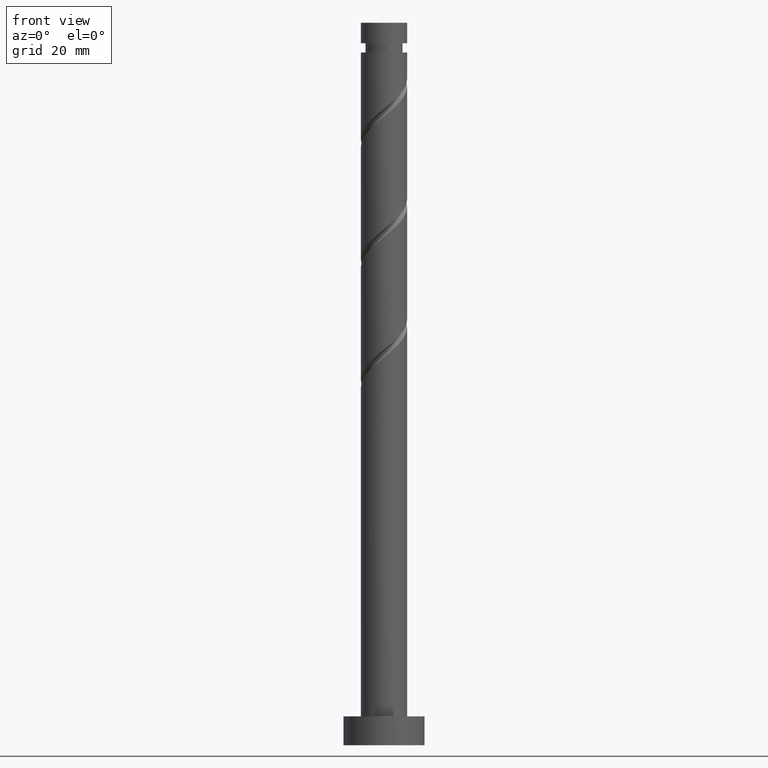
[diagram: clean part render]
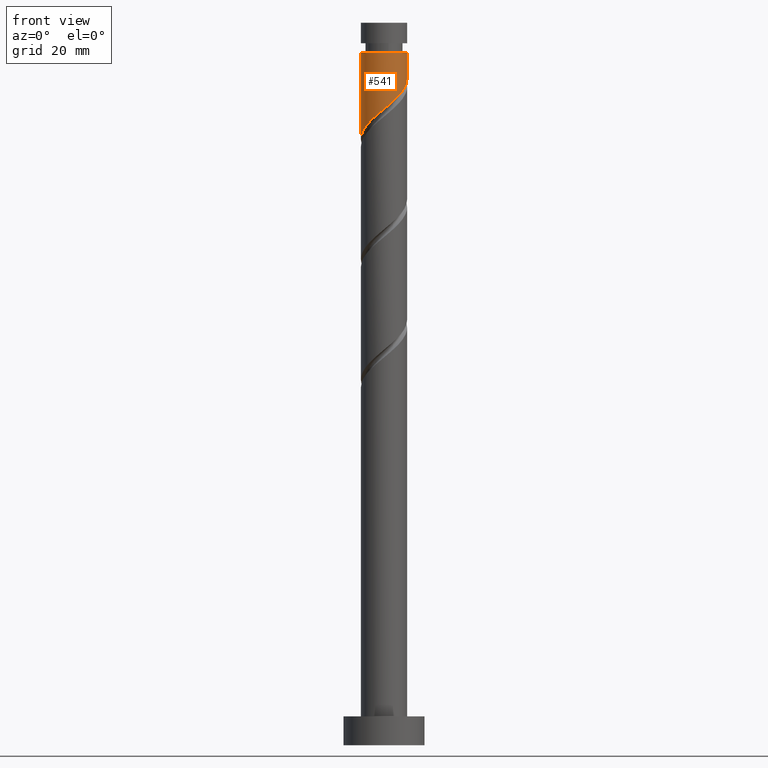
[diagram: same view with one face highlighted and labeled with its STEP entity id]
A machine part, front view. The second image highlights one B-rep face of the part: STEP entity #541.
In plain terms, the highlighted cylindrical surface (edge-blend (fillet) strip) has radius 4 mm, axis along (-0, -0, -1).
Its self-contained STEP definition (entity closure, byte-faithful):
#12 = VECTOR ( 'NONE', #462, 1000.000000000000000 ) ;
#40 = CARTESIAN_POINT ( 'NONE',  ( 3.170406666830035025, -2.519899137249414167, 113.0760576301162388 ) ) ;
#85 = DIRECTION ( 'NONE',  ( -0.000000000000000000, -0.000000000000000000, -1.000000000000000000 ) ) ;
#95 = CYLINDRICAL_SURFACE ( 'NONE', #998, 4.000000000000000000 ) ;
#101 = CARTESIAN_POINT ( 'NONE',  ( 4.000000000000001776, 3.178537790039628998E-15, 115.3033600715865106 ) ) ;
#123 = CARTESIAN_POINT ( 'NONE',  ( 3.482167122072586274, -1.968378046503446388, 113.5968909634495532 ) ) ;
#168 = CIRCLE ( 'NONE', #1420, 3.999999999999996447 ) ;
#180 = VERTEX_POINT ( 'NONE', #354 ) ;
#198 = CARTESIAN_POINT ( 'NONE',  ( -4.000000000000001776, -0.2278949497857279960, 105.0762044941271256 ) ) ;
#226 = EDGE_CURVE ( 'NONE', #419, #900, #439, .T. ) ;
#235 = DIRECTION ( 'NONE',  ( -0.000000000000000000, -0.000000000000000000, -1.000000000000000000 ) ) ;
#308 = CARTESIAN_POINT ( 'NONE',  ( -2.519899137249414167, -3.170406666830035025, 107.8677242967829102 ) ) ;
#354 = CARTESIAN_POINT ( 'NONE',  ( -3.999999999999996447, 0.000000000000000000, 119.8468909634495532 ) ) ;
#363 = CARTESIAN_POINT ( 'NONE',  ( -1.416856955757477943, -3.793927577315138855, 108.9093909634495674 ) ) ;
#399 = CARTESIAN_POINT ( 'NONE',  ( 4.000000000000001776, 3.178537790039629392E-15, 115.3033600715865106 ) ) ;
#419 = VERTEX_POINT ( 'NONE', #101 ) ;
#439 =( BOUNDED_CURVE ( )  B_SPLINE_CURVE ( 2, ( #399, #1237, #1117, #1198, #123, #40, #1061, #1554, #1080, #944, #1427, #1307, #1570, #363, #673, #308, #1016, #1520, #1507, #1147, #1500, #198, #920 ),
 .UNSPECIFIED., .F., .T. ) 
 B_SPLINE_CURVE_WITH_KNOTS ( ( 3, 2, 2, 2, 2, 2, 2, 2, 2, 2, 2, 3 ),
 ( 0.3045322023138551937, 0.3125000000000000000, 0.3250000000000000111, 0.3375000000000000222, 0.3499999999999999778, 0.3624999999999999889, 0.3750000000000000000, 0.3875000000000000111, 0.4000000000000000222, 0.4124999999999999778, 0.4249999999999999889, 0.4295322023138552492 ),
 .UNSPECIFIED. ) 
 CURVE ( )  GEOMETRIC_REPRESENTATION_ITEM ( )  RATIONAL_B_SPLINE_CURVE ( ( 0.9039174447099355136, 0.9019565955404649227, 0.9090909090909131685, 0.8978984914501292325, 0.9090909090909131685, 0.8978984914501292325, 0.9090909090909131685, 0.8978984914501292325, 0.9090909090909131685, 0.8978984914501292325, 0.9090909090909131685, 0.8978984914501292325, 0.9090909090909131685, 0.8978984914501292325, 0.9090909090909131685, 0.8978984914501292325, 0.9090909090909131685, 0.8978984914501292325, 0.9090909090909131685, 0.8978984914501292325, 0.9090909090909131685, 0.9050328050005774783, 0.9039174447099354026 ) ) 
 REPRESENTATION_ITEM ( '' )  );
#445 = LINE ( 'NONE', #716, #468 ) ;
#457 = CARTESIAN_POINT ( 'NONE',  ( 0.000000000000000000, 0.000000000000000000, 119.8468909634495532 ) ) ;
#462 = DIRECTION ( 'NONE',  ( -0.000000000000000000, -0.000000000000000000, -1.000000000000000000 ) ) ;
#468 = VECTOR ( 'NONE', #1183, 1000.000000000000000 ) ;
#541 = ADVANCED_FACE ( 'NONE', ( #1058 ), #95, .T. ) ;
#559 = EDGE_LOOP ( 'NONE', ( #1409, #835, #906, #1001 ) ) ;
#570 = DIRECTION ( 'NONE',  ( -1.000000000000000000, 0.000000000000000000, 0.000000000000000000 ) ) ;
#673 = CARTESIAN_POINT ( 'NONE',  ( -1.968378046503446388, -3.482167122072586718, 108.3885576301162388 ) ) ;
#716 = CARTESIAN_POINT ( 'NONE',  ( 4.000000000000000000, 4.898587196589412829E-16, 125.0000000000000000 ) ) ;
#748 = EDGE_CURVE ( 'NONE', #1302, #180, #168, .T. ) ;
#835 = ORIENTED_EDGE ( 'NONE', *, *, #748, .T. ) ;
#900 = VERTEX_POINT ( 'NONE', #1332 ) ;
#906 = ORIENTED_EDGE ( 'NONE', *, *, #1334, .T. ) ;
#920 = CARTESIAN_POINT ( 'NONE',  ( -4.000000000000000888, 1.919117156250341806E-15, 104.8866934049197965 ) ) ;
#944 = CARTESIAN_POINT ( 'NONE',  ( 1.083753322405397457, -3.902159508677975452, 110.9927242967828960 ) ) ;
#998 = AXIS2_PLACEMENT_3D ( 'NONE', #1551, #235, #1431 ) ;
#1001 = ORIENTED_EDGE ( 'NONE', *, *, #226, .F. ) ;
#1016 = CARTESIAN_POINT ( 'NONE',  ( -2.948087585633557772, -2.703475464551750029, 107.3468909634495532 ) ) ;
#1058 = FACE_OUTER_BOUND ( 'NONE', #559, .T. ) ;
#1061 = CARTESIAN_POINT ( 'NONE',  ( 2.703475464551750029, -2.948087585633557772, 112.5552242967828676 ) ) ;
#1080 = CARTESIAN_POINT ( 'NONE',  ( 1.660148792339431356, -3.639217771347837971, 111.5135576301162246 ) ) ;
#1117 = CARTESIAN_POINT ( 'NONE',  ( 3.920000000000000817, -0.7959899496852961276, 114.6385576301162246 ) ) ;
#1147 = CARTESIAN_POINT ( 'NONE',  ( -3.902159508677975452, -1.083753322405397901, 105.7843909634495674 ) ) ;
#1183 = DIRECTION ( 'NONE',  ( -0.000000000000000000, -0.000000000000000000, -1.000000000000000000 ) ) ;
#1198 = CARTESIAN_POINT ( 'NONE',  ( 3.793927577315138855, -1.416856955757478387, 114.1177242967828818 ) ) ;
#1237 = CARTESIAN_POINT ( 'NONE',  ( 4.000000000000000888, -0.4020151261036860602, 114.9690554961786546 ) ) ;
#1278 = CARTESIAN_POINT ( 'NONE',  ( 3.999999999999996447, 4.898587196589410857E-16, 119.8468909634495532 ) ) ;
#1302 = VERTEX_POINT ( 'NONE', #1278 ) ;
#1307 = CARTESIAN_POINT ( 'NONE',  ( -0.1751229436131137573, -4.046072422684862779, 109.9510576301162388 ) ) ;
#1332 = CARTESIAN_POINT ( 'NONE',  ( -4.000000000000000888, 1.919117156250341806E-15, 104.8866934049198107 ) ) ;
#1334 = EDGE_CURVE ( 'NONE', #180, #900, #1550, .T. ) ;
#1409 = ORIENTED_EDGE ( 'NONE', *, *, #1435, .F. ) ;
#1420 = AXIS2_PLACEMENT_3D ( 'NONE', #457, #85, #570 ) ;
#1427 = CARTESIAN_POINT ( 'NONE',  ( 0.4543151893961418497, -3.974115965681417784, 110.4718909634495674 ) ) ;
#1431 = DIRECTION ( 'NONE',  ( -1.000000000000000000, 0.000000000000000000, 0.000000000000000000 ) ) ;
#1435 = EDGE_CURVE ( 'NONE', #1302, #419, #445, .T. ) ;
#1500 = CARTESIAN_POINT ( 'NONE',  ( -3.974115965681417784, -0.4543151893961420718, 105.2635576301162246 ) ) ;
#1507 = CARTESIAN_POINT ( 'NONE',  ( -3.639217771347837971, -1.660148792339431356, 106.3052242967828818 ) ) ;
#1520 = CARTESIAN_POINT ( 'NONE',  ( -3.376276034017704042, -2.236544262273465034, 106.8260576301162388 ) ) ;
#1525 = CARTESIAN_POINT ( 'NONE',  ( -4.000000000000000000, 0.000000000000000000, 125.0000000000000000 ) ) ;
#1550 = LINE ( 'NONE', #1525, #12 ) ;
#1551 = CARTESIAN_POINT ( 'NONE',  ( 0.000000000000000000, 0.000000000000000000, 125.0000000000000000 ) ) ;
#1554 = CARTESIAN_POINT ( 'NONE',  ( 2.236544262273464589, -3.376276034017704486, 112.0343909634495532 ) ) ;
#1570 = CARTESIAN_POINT ( 'NONE',  ( -0.7959899496852960166, -3.920000000000000817, 109.4302242967828533 ) ) ;